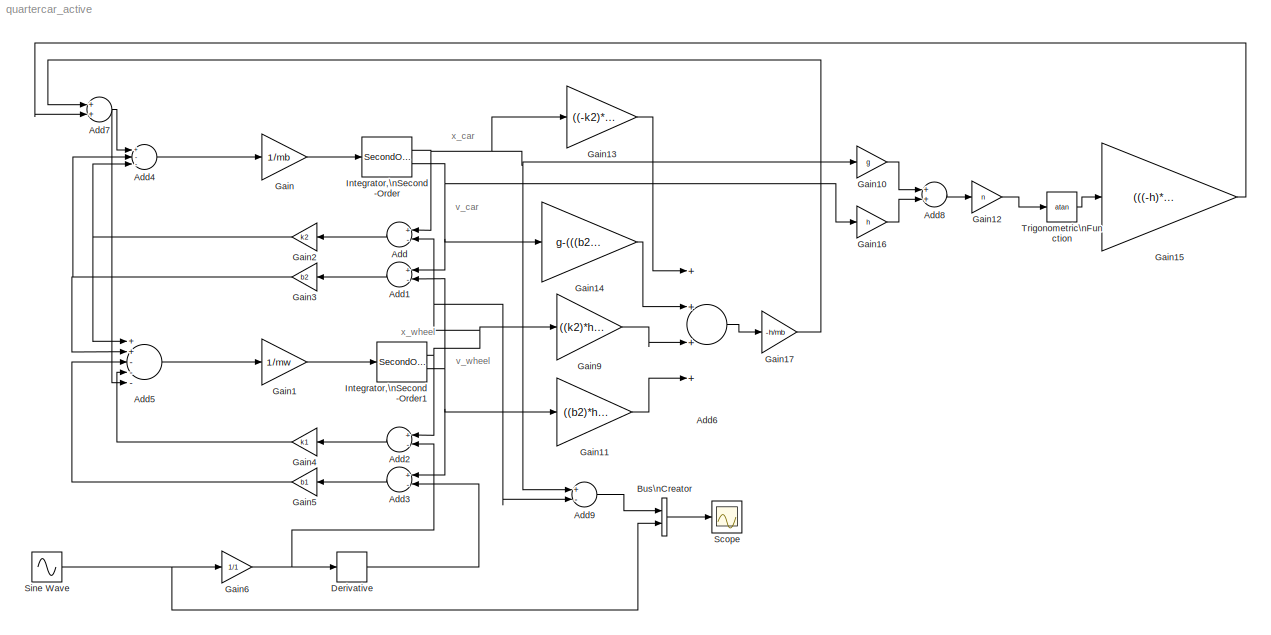
MODEL quartercar_active
KIND model
CONFIG InitFcn = mb=2500;\nmw=320;\nk1=80000;\nk2=500000;\nb1=320;\nb2=15020;\nh=1;\nn=100;\ng=5.01;\nksw=100.65;
BLOCK [Sum] Add
  InputSameDT = off
  Inputs = +-
  OutDataTypeStr = Inherit: Inherit via internal rule
  Ports = [2, 1]
  SID = 26
  SaturateOnIntegerOverflow = off
BLOCK [Sum] Add1
  InputSameDT = off
  Inputs = +-
  OutDataTypeStr = Inherit: Inherit via internal rule
  Ports = [2, 1]
  SID = 27
  SaturateOnIntegerOverflow = off
BLOCK [Sum] Add2
  InputSameDT = off
  Inputs = +-
  OutDataTypeStr = Inherit: Inherit via internal rule
  Ports = [2, 1]
  SID = 28
  SaturateOnIntegerOverflow = off
BLOCK [Sum] Add3
  InputSameDT = off
  Inputs = +-
  OutDataTypeStr = Inherit: Inherit via internal rule
  Ports = [2, 1]
  SID = 29
  SaturateOnIntegerOverflow = off
BLOCK [Sum] Add4
  InputSameDT = off
  Inputs = +--
  OutDataTypeStr = Inherit: Inherit via internal rule
  Ports = [3, 1]
  SID = 30
  SaturateOnIntegerOverflow = off
BLOCK [Sum] Add5
  InputSameDT = off
  Inputs = ++---
  OutDataTypeStr = Inherit: Inherit via internal rule
  Ports = [5, 1]
  SID = 31
  SaturateOnIntegerOverflow = off
BLOCK [Sum] Add6
  InputSameDT = off
  Inputs = ++++
  OutDataTypeStr = Inherit: Inherit via internal rule
  Ports = [4, 1]
  SID = 60
  SaturateOnIntegerOverflow = off
BLOCK [Sum] Add7
  InputSameDT = off
  OutDataTypeStr = Inherit: Inherit via internal rule
  Ports = [2, 1]
  SID = 62
  SaturateOnIntegerOverflow = off
BLOCK [Sum] Add8
  InputSameDT = off
  OutDataTypeStr = Inherit: Inherit via internal rule
  Ports = [2, 1]
  SID = 64
  SaturateOnIntegerOverflow = off
BLOCK [Sum] Add9
  InputSameDT = off
  Inputs = +-
  OutDataTypeStr = Inherit: Inherit via internal rule
  Ports = [2, 1]
  SID = 76
  SaturateOnIntegerOverflow = off
BLOCK [BusCreator] Bus\nCreator
  DisplayOption = bar
  Inputs = 2
  Ports = [2, 1]
  SID = 72
BLOCK [Derivative] Derivative
  SID = 32
BLOCK [Gain] Gain
  Gain = 1/mb
  OutDataTypeStr = Inherit: Inherit via internal rule
  ParamDataTypeStr = Inherit: Inherit via internal rule
  SID = 33
  SaturateOnIntegerOverflow = off
BLOCK [Gain] Gain1
  Gain = 1/mw
  OutDataTypeStr = Inherit: Inherit via internal rule
  ParamDataTypeStr = Inherit: Inherit via internal rule
  SID = 34
  SaturateOnIntegerOverflow = off
BLOCK [Gain] Gain10
  Gain = g
  OutDataTypeStr = Inherit: Inherit via internal rule
  ParamDataTypeStr = Inherit: Inherit via internal rule
  SID = 63
  SaturateOnIntegerOverflow = off
BLOCK [Gain] Gain11
  Gain = ((b2)*h)/mb
  OutDataTypeStr = Inherit: Inherit via internal rule
  ParamDataTypeStr = Inherit: Inherit via internal rule
  SID = 53
  SaturateOnIntegerOverflow = off
BLOCK [Gain] Gain12
  Gain = n
  OutDataTypeStr = Inherit: Inherit via internal rule
  ParamDataTypeStr = Inherit: Inherit via internal rule
  SID = 65
  SaturateOnIntegerOverflow = off
BLOCK [Gain] Gain13
  Gain = ((-k2)*h)/mb
  OutDataTypeStr = Inherit: Inherit via internal rule
  ParamDataTypeStr = Inherit: Inherit via internal rule
  SID = 55
  SaturateOnIntegerOverflow = off
BLOCK [Gain] Gain14
  Gain = g-(((b2)*(h))/mb)
  OutDataTypeStr = Inherit: Inherit via internal rule
  ParamDataTypeStr = Inherit: Inherit via internal rule
  SID = 56
  SaturateOnIntegerOverflow = off
BLOCK [Gain] Gain15
  Gain = (((-h)*(ksw))/mb)*(2/ 3.14)
  OutDataTypeStr = Inherit: Inherit via internal rule
  ParamDataTypeStr = Inherit: Inherit via internal rule
  SID = 69
  SaturateOnIntegerOverflow = off
BLOCK [Gain] Gain16
  Gain = h
  OutDataTypeStr = Inherit: Inherit via internal rule
  ParamDataTypeStr = Inherit: Inherit via internal rule
  SID = 75
  SaturateOnIntegerOverflow = off
BLOCK [Gain] Gain17
  Gain = -h/mb
  OutDataTypeStr = Inherit: Inherit via internal rule
  ParamDataTypeStr = Inherit: Inherit via internal rule
  SID = 59
  SaturateOnIntegerOverflow = off
BLOCK [Gain] Gain2
  Gain = k2
  OutDataTypeStr = Inherit: Inherit via internal rule
  ParamDataTypeStr = Inherit: Inherit via internal rule
  SID = 35
  SaturateOnIntegerOverflow = off
BLOCK [Gain] Gain3
  Gain = b2
  OutDataTypeStr = Inherit: Inherit via internal rule
  ParamDataTypeStr = Inherit: Inherit via internal rule
  SID = 36
  SaturateOnIntegerOverflow = off
BLOCK [Gain] Gain4
  Gain = k1
  OutDataTypeStr = Inherit: Inherit via internal rule
  ParamDataTypeStr = Inherit: Inherit via internal rule
  SID = 37
  SaturateOnIntegerOverflow = off
BLOCK [Gain] Gain5
  Gain = b1
  OutDataTypeStr = Inherit: Inherit via internal rule
  ParamDataTypeStr = Inherit: Inherit via internal rule
  SID = 38
  SaturateOnIntegerOverflow = off
BLOCK [Gain] Gain6
  Gain = 1/1
  OutDataTypeStr = Inherit: Inherit via internal rule
  ParamDataTypeStr = Inherit: Inherit via internal rule
  SID = 39
  SaturateOnIntegerOverflow = off
BLOCK [Gain] Gain9
  Gain = ((k2)*h)/mb
  OutDataTypeStr = Inherit: Inherit via internal rule
  ParamDataTypeStr = Inherit: Inherit via internal rule
  SID = 51
  SaturateOnIntegerOverflow = off
BLOCK [SecondOrderIntegrator] Integrator,\nSecond-Order
  Ports = [1, 2]
  SID = 42
BLOCK [SecondOrderIntegrator] Integrator,\nSecond-Order1
  Ports = [1, 2]
  SID = 43
BLOCK [Scope] Scope
  DataFormat = StructureWithTime
  Floating = off
  NumInputPorts = 1
  Ports = [1]
  SID = 73
  SampleTime = 0
  ShowLegends = off
  YMax = 4.5
  ZoomMode = xonly
BLOCK [Sin] Sine Wave
  Amplitude = 0.01
  Frequency = 20
  Ports = [0, 1]
  SID = 46
  SampleTime = 0
BLOCK [Trigonometry] Trigonometric\nFunction
  Operator = atan
  Ports = [1, 1]
  SID = 83
ANNOTATION (root): v_car
ANNOTATION (root): v_wheel
ANNOTATION (root): x_car
ANNOTATION (root): x_wheel
LINE Add1:1 -> Gain3:1
LINE Add2:1 -> Gain4:1
LINE Add3:1 -> Gain5:1
LINE Add4:1 -> Gain:1
LINE Add5:1 -> Gain1:1
LINE Add6:1 -> Gain17:1
NET Add7:1 -> Add4:1, Add5:5
LINE Add8:1 -> Gain12:1
LINE Add9:1 -> Bus\nCreator:1
LINE Add:1 -> Gain2:1
LINE Bus\nCreator:1 -> Scope:1
LINE Derivative:1 -> Add3:2
LINE Gain10:1 -> Add8:1
LINE Gain11:1 -> Add6:4
LINE Gain12:1 -> Trigonometric\nFunction:1
LINE Gain13:1 -> Add6:1
LINE Gain14:1 -> Add6:2
LINE Gain15:1 -> Add7:2
LINE Gain16:1 -> Add8:2
LINE Gain17:1 -> Add7:1
LINE Gain1:1 -> Integrator,\nSecond-Order1:1
NET Gain2:1 -> Add4:3, Add5:1
NET Gain3:1 -> Add4:2, Add5:2
LINE Gain4:1 -> Add5:4
LINE Gain5:1 -> Add5:3
NET Gain6:1 -> Add2:2, Derivative:1
LINE Gain9:1 -> Add6:3
LINE Gain:1 -> Integrator,\nSecond-Order:1
NET Integrator,\nSecond-Order1:1 -> Add2:1, Add9:2, Add:2, Gain9:1
NET Integrator,\nSecond-Order1:2 -> Add1:2, Add3:1, Gain11:1
NET Integrator,\nSecond-Order:1 -> Add9:1, Add:1, Gain10:1, Gain13:1
NET Integrator,\nSecond-Order:2 -> Add1:1, Gain14:1, Gain16:1
NET Sine Wave:1 -> Bus\nCreator:2, Gain6:1
LINE Trigonometric\nFunction:1 -> Gain15:1
note: NET lines group one-source signal fan-out (src -> all destinations, sorted); 1:1 wires keep LINE
